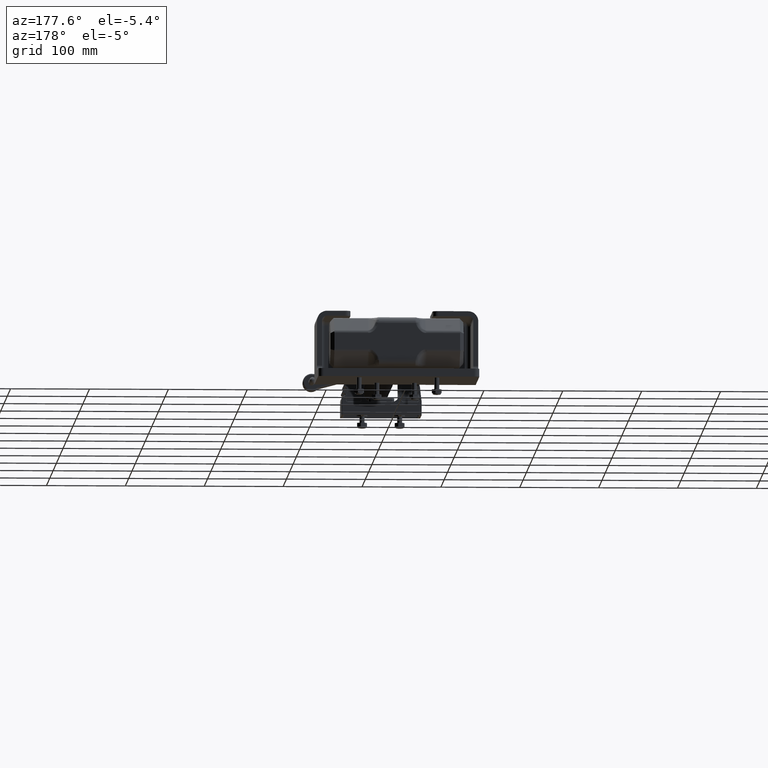
[diagram: clean part render]
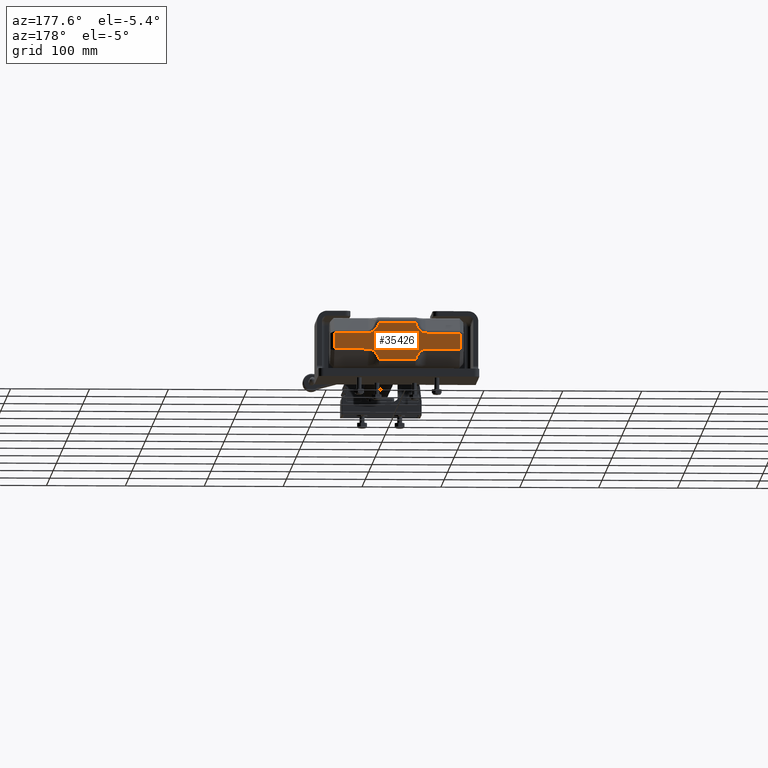
[diagram: same view with one face highlighted and labeled with its STEP entity id]
A machine part, auxiliary view. The second image highlights one B-rep face of the part: STEP entity #35426.
In plain terms, the highlighted planar face has unit normal (0, -1, 0).
Its self-contained STEP definition (entity closure, byte-faithful):
#660 = FACE_OUTER_BOUND ( 'NONE', #17195, .T. ) ;
#2469 = CARTESIAN_POINT ( 'NONE',  ( 1.062500000000000000, 33.50000000000000000, 1.214999999999999600 ) ) ;
#2473 = PLANE ( 'NONE',  #52112 ) ;
#2476 = DIRECTION ( 'NONE',  ( 0.0000000000000000000, -1.000000000000000000, 0.0000000000000000000 ) ) ;
#2477 = DIRECTION ( 'NONE',  ( 0.0000000000000000000, -0.0000000000000000000, -1.000000000000000000 ) ) ;
#6508 =( BOUNDED_CURVE ( )  B_SPLINE_CURVE ( 3, ( #53604, #53611, #53612, #53613 ),
 .UNSPECIFIED., .F., .T. ) 
 B_SPLINE_CURVE_WITH_KNOTS ( ( 4, 4 ),
 ( 3.141592653589793100, 4.305120543111164500 ),
 .UNSPECIFIED. ) 
 CURVE ( )  GEOMETRIC_REPRESENTATION_ITEM ( )  RATIONAL_B_SPLINE_CURVE ( ( 1.000000000000000000, 0.8903297767583737700, 0.8903297767583737700, 1.000000000000000000 ) ) 
 REPRESENTATION_ITEM ( '' )  );
#6516 =( BOUNDED_CURVE ( )  B_SPLINE_CURVE ( 3, ( #53594, #53605, #53606, #53607 ),
 .UNSPECIFIED., .F., .T. ) 
 B_SPLINE_CURVE_WITH_KNOTS ( ( 4, 4 ),
 ( 3.141592653589793100, 4.305120543111225800 ),
 .UNSPECIFIED. ) 
 CURVE ( )  GEOMETRIC_REPRESENTATION_ITEM ( )  RATIONAL_B_SPLINE_CURVE ( ( 1.000000000000000000, 0.8903297767583625600, 0.8903297767583625600, 1.000000000000000000 ) ) 
 REPRESENTATION_ITEM ( '' )  );
#6519 =( BOUNDED_CURVE ( )  B_SPLINE_CURVE ( 3, ( #53588, #53595, #53596, #53597 ),
 .UNSPECIFIED., .F., .T. ) 
 B_SPLINE_CURVE_WITH_KNOTS ( ( 4, 4 ),
 ( 5.119657417658154400, 6.283185307179586200 ),
 .UNSPECIFIED. ) 
 CURVE ( )  GEOMETRIC_REPRESENTATION_ITEM ( )  RATIONAL_B_SPLINE_CURVE ( ( 1.000000000000000000, 0.8903297767583628900, 0.8903297767583628900, 1.000000000000000000 ) ) 
 REPRESENTATION_ITEM ( '' )  );
#7224 =( BOUNDED_CURVE ( )  B_SPLINE_CURVE ( 3, ( #53364, #53369, #53370, #53371 ),
 .UNSPECIFIED., .F., .T. ) 
 B_SPLINE_CURVE_WITH_KNOTS ( ( 4, 4 ),
 ( 5.119657417658214800, 6.283185307179586200 ),
 .UNSPECIFIED. ) 
 CURVE ( )  GEOMETRIC_REPRESENTATION_ITEM ( )  RATIONAL_B_SPLINE_CURVE ( ( 1.000000000000000000, 0.8903297767583737700, 0.8903297767583737700, 1.000000000000000000 ) ) 
 REPRESENTATION_ITEM ( '' )  );
#10814 = VERTEX_POINT ( 'NONE', #47649 ) ;
#10819 = VERTEX_POINT ( 'NONE', #47654 ) ;
#10846 = VERTEX_POINT ( 'NONE', #47681 ) ;
#10852 = VERTEX_POINT ( 'NONE', #47688 ) ;
#10853 = VERTEX_POINT ( 'NONE', #47689 ) ;
#10855 = VERTEX_POINT ( 'NONE', #47691 ) ;
#10856 = VERTEX_POINT ( 'NONE', #47692 ) ;
#10857 = VERTEX_POINT ( 'NONE', #47693 ) ;
#10858 = VERTEX_POINT ( 'NONE', #47694 ) ;
#10859 = VERTEX_POINT ( 'NONE', #47695 ) ;
#10863 = VERTEX_POINT ( 'NONE', #47699 ) ;
#10866 = VERTEX_POINT ( 'NONE', #47702 ) ;
#13002 = EDGE_CURVE ( 'NONE', #10852, #10819, #7224, .T. ) ;
#13005 = EDGE_CURVE ( 'NONE', #10866, #10855, #49990, .T. ) ;
#13006 = EDGE_CURVE ( 'NONE', #10863, #10866, #49993, .T. ) ;
#13007 = EDGE_CURVE ( 'NONE', #10819, #10863, #49996, .T. ) ;
#13073 = EDGE_CURVE ( 'NONE', #10857, #10859, #6519, .T. ) ;
#13074 = EDGE_CURVE ( 'NONE', #10858, #10814, #50084, .T. ) ;
#13075 = EDGE_CURVE ( 'NONE', #10814, #10846, #50091, .T. ) ;
#13076 = EDGE_CURVE ( 'NONE', #10856, #10857, #50093, .T. ) ;
#13077 = EDGE_CURVE ( 'NONE', #10855, #10856, #6516, .T. ) ;
#13078 = EDGE_CURVE ( 'NONE', #10859, #10858, #50086, .T. ) ;
#13079 = EDGE_CURVE ( 'NONE', #10846, #10853, #6508, .T. ) ;
#13080 = EDGE_CURVE ( 'NONE', #10853, #10852, #50088, .T. ) ;
#17195 = EDGE_LOOP ( 'NONE', ( #43775, #43776, #43777, #43778, #46280, #46282, #43779, #43780, #46345, #46334, #46378, #46375 ) ) ;
#35426 = ADVANCED_FACE ( 'NONE', ( #660 ), #2473, .F. ) ;
#43775 = ORIENTED_EDGE ( 'NONE', *, *, #13077, .T. ) ;
#43776 = ORIENTED_EDGE ( 'NONE', *, *, #13076, .T. ) ;
#43777 = ORIENTED_EDGE ( 'NONE', *, *, #13073, .T. ) ;
#43778 = ORIENTED_EDGE ( 'NONE', *, *, #13078, .T. ) ;
#43779 = ORIENTED_EDGE ( 'NONE', *, *, #13079, .T. ) ;
#43780 = ORIENTED_EDGE ( 'NONE', *, *, #13080, .T. ) ;
#46280 = ORIENTED_EDGE ( 'NONE', *, *, #13074, .T. ) ;
#46282 = ORIENTED_EDGE ( 'NONE', *, *, #13075, .T. ) ;
#46334 = ORIENTED_EDGE ( 'NONE', *, *, #13007, .T. ) ;
#46345 = ORIENTED_EDGE ( 'NONE', *, *, #13002, .T. ) ;
#46375 = ORIENTED_EDGE ( 'NONE', *, *, #13005, .T. ) ;
#46378 = ORIENTED_EDGE ( 'NONE', *, *, #13006, .T. ) ;
#47649 = CARTESIAN_POINT ( 'NONE',  ( 3.137499999999998800, 33.50000000000000000, -0.4007516215959749400 ) ) ;
#47654 = CARTESIAN_POINT ( 'NONE',  ( -1.462500000000000100, 33.50000000000000000, -0.4007516215959749400 ) ) ;
#47681 = CARTESIAN_POINT ( 'NONE',  ( 1.462500000000000100, 33.50000000000000000, -0.4007516215959756600 ) ) ;
#47688 = CARTESIAN_POINT ( 'NONE',  ( -0.9230538420318446000, 33.50000000000000000, -0.9025000000000003000 ) ) ;
#47689 = CARTESIAN_POINT ( 'NONE',  ( 0.9230538420318443700, 33.50000000000000000, -0.9025000000000003000 ) ) ;
#47691 = CARTESIAN_POINT ( 'NONE',  ( -1.462500000000000100, 33.50000000000000000, 0.4007516215958987200 ) ) ;
#47692 = CARTESIAN_POINT ( 'NONE',  ( -0.9230538420318303800, 33.50000000000000000, 0.9024999999999997500 ) ) ;
#47693 = CARTESIAN_POINT ( 'NONE',  ( 0.9230538420318305000, 33.50000000000000000, 0.9024999999999997500 ) ) ;
#47694 = CARTESIAN_POINT ( 'NONE',  ( 3.137499999999998800, 33.50000000000000000, 0.4007516215959007800 ) ) ;
#47695 = CARTESIAN_POINT ( 'NONE',  ( 1.462500000000000100, 33.50000000000000000, 0.4007516215958996700 ) ) ;
#47699 = CARTESIAN_POINT ( 'NONE',  ( -3.137500000000000200, 33.50000000000000000, -0.4007516215959748800 ) ) ;
#47702 = CARTESIAN_POINT ( 'NONE',  ( -3.137500000000000200, 33.50000000000000000, 0.4007516215959007800 ) ) ;
#49990 = LINE ( 'NONE', #53380, #49992 ) ;
#49992 = VECTOR ( 'NONE', #53381, 39.37007874015748100 ) ;
#49993 = LINE ( 'NONE', #53382, #49994 ) ;
#49994 = VECTOR ( 'NONE', #53383, 39.37007874015748100 ) ;
#49996 = LINE ( 'NONE', #53384, #49998 ) ;
#49998 = VECTOR ( 'NONE', #53385, 39.37007874015748100 ) ;
#50084 = LINE ( 'NONE', #53598, #50089 ) ;
#50086 = LINE ( 'NONE', #53608, #50096 ) ;
#50088 = LINE ( 'NONE', #53615, #50097 ) ;
#50089 = VECTOR ( 'NONE', #53599, 39.37007874015748100 ) ;
#50091 = LINE ( 'NONE', #53600, #50092 ) ;
#50092 = VECTOR ( 'NONE', #53601, 39.37007874015748100 ) ;
#50093 = LINE ( 'NONE', #53602, #50094 ) ;
#50094 = VECTOR ( 'NONE', #53603, 39.37007874015748100 ) ;
#50096 = VECTOR ( 'NONE', #53609, 39.37007874015748100 ) ;
#50097 = VECTOR ( 'NONE', #53616, 39.37007874015748100 ) ;
#52112 = AXIS2_PLACEMENT_3D ( 'NONE', #2469, #2476, #2477 ) ;
#53364 = CARTESIAN_POINT ( 'NONE',  ( -0.9230538420318446000, 33.50000000000000000, -0.9025000000000003000 ) ) ;
#53369 = CARTESIAN_POINT ( 'NONE',  ( -1.018804119444360200, 33.50000000000000700, -0.5886027570223922900 ) ) ;
#53370 = CARTESIAN_POINT ( 'NONE',  ( -1.220769043771703800, 33.50000000000000700, -0.4007516215959758800 ) ) ;
#53371 = CARTESIAN_POINT ( 'NONE',  ( -1.462500000000000100, 33.50000000000000000, -0.4007516215959749400 ) ) ;
#53380 = CARTESIAN_POINT ( 'NONE',  ( 1.062500000000000000, 33.50000000000000000, 0.4007516215959007800 ) ) ;
#53381 = DIRECTION ( 'NONE',  ( 1.000000000000000000, -0.0000000000000000000, -0.0000000000000000000 ) ) ;
#53382 = CARTESIAN_POINT ( 'NONE',  ( -3.137500000000000200, 33.50000000000000000, 0.4784166645408792200 ) ) ;
#53383 = DIRECTION ( 'NONE',  ( 0.0000000000000000000, 0.0000000000000000000, 1.000000000000000000 ) ) ;
#53384 = CARTESIAN_POINT ( 'NONE',  ( 1.062500000000000000, 33.50000000000000000, -0.4007516215959749400 ) ) ;
#53385 = DIRECTION ( 'NONE',  ( -1.000000000000000000, 0.0000000000000000000, 0.0000000000000000000 ) ) ;
#53588 = CARTESIAN_POINT ( 'NONE',  ( 0.9230538420318305000, 33.50000000000000000, 0.9024999999999997500 ) ) ;
#53594 = CARTESIAN_POINT ( 'NONE',  ( -1.462500000000000100, 33.50000000000000000, 0.4007516215958987200 ) ) ;
#53595 = CARTESIAN_POINT ( 'NONE',  ( 1.018804119444338500, 33.50000000000000000, 0.5886027570223466600 ) ) ;
#53596 = CARTESIAN_POINT ( 'NONE',  ( 1.220769043771689200, 33.50000000000000000, 0.4007516215958996700 ) ) ;
#53597 = CARTESIAN_POINT ( 'NONE',  ( 1.462500000000000100, 33.50000000000000000, 0.4007516215958996700 ) ) ;
#53598 = CARTESIAN_POINT ( 'NONE',  ( 3.137499999999998800, 33.50000000000000000, 1.214999999999999600 ) ) ;
#53599 = DIRECTION ( 'NONE',  ( 0.0000000000000000000, 0.0000000000000000000, -1.000000000000000000 ) ) ;
#53600 = CARTESIAN_POINT ( 'NONE',  ( 1.062500000000000000, 33.50000000000000000, -0.4007516215959749400 ) ) ;
#53601 = DIRECTION ( 'NONE',  ( -1.000000000000000000, 0.0000000000000000000, 0.0000000000000000000 ) ) ;
#53602 = CARTESIAN_POINT ( 'NONE',  ( 1.062500000000000000, 33.50000000000000000, 0.9024999999999997500 ) ) ;
#53603 = DIRECTION ( 'NONE',  ( 1.000000000000000000, -0.0000000000000000000, -0.0000000000000000000 ) ) ;
#53604 = CARTESIAN_POINT ( 'NONE',  ( 1.462500000000000100, 33.50000000000000000, -0.4007516215959756600 ) ) ;
#53605 = CARTESIAN_POINT ( 'NONE',  ( -1.220769043771688900, 33.50000000000000000, 0.4007516215958985600 ) ) ;
#53606 = CARTESIAN_POINT ( 'NONE',  ( -1.018804119444338200, 33.50000000000000000, 0.5886027570223456600 ) ) ;
#53607 = CARTESIAN_POINT ( 'NONE',  ( -0.9230538420318303800, 33.50000000000000000, 0.9024999999999997500 ) ) ;
#53608 = CARTESIAN_POINT ( 'NONE',  ( 1.062500000000000000, 33.50000000000000000, 0.4007516215959007800 ) ) ;
#53609 = DIRECTION ( 'NONE',  ( 1.000000000000000000, -0.0000000000000000000, -0.0000000000000000000 ) ) ;
#53611 = CARTESIAN_POINT ( 'NONE',  ( 1.220769043771703800, 33.50000000000000700, -0.4007516215959756600 ) ) ;
#53612 = CARTESIAN_POINT ( 'NONE',  ( 1.018804119444360400, 33.50000000000000700, -0.5886027570223917300 ) ) ;
#53613 = CARTESIAN_POINT ( 'NONE',  ( 0.9230538420318443700, 33.50000000000000000, -0.9025000000000003000 ) ) ;
#53615 = CARTESIAN_POINT ( 'NONE',  ( 1.062500000000000000, 33.50000000000000000, -0.9025000000000003000 ) ) ;
#53616 = DIRECTION ( 'NONE',  ( -1.000000000000000000, 0.0000000000000000000, 0.0000000000000000000 ) ) ;